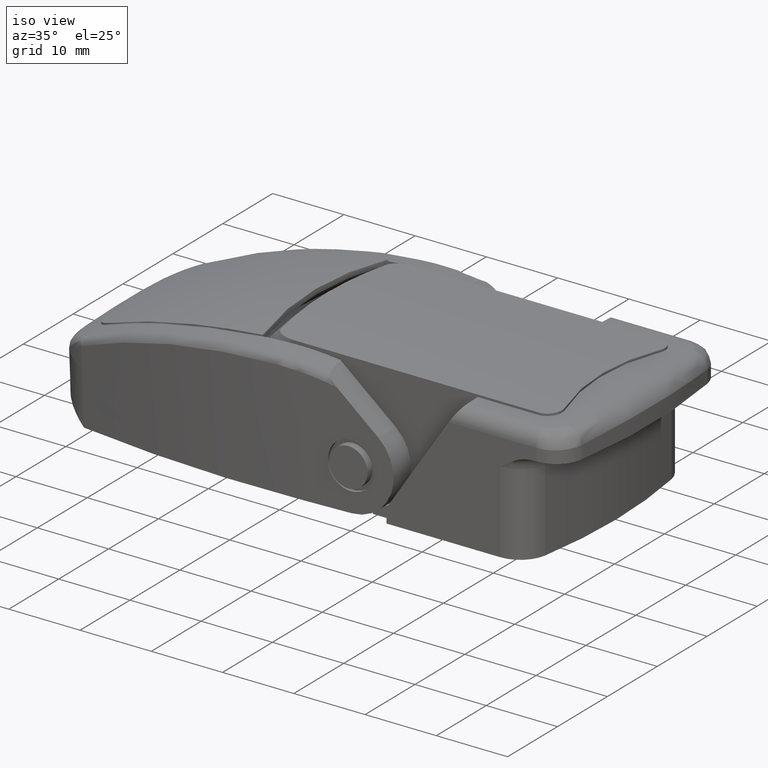
[diagram: clean part render]
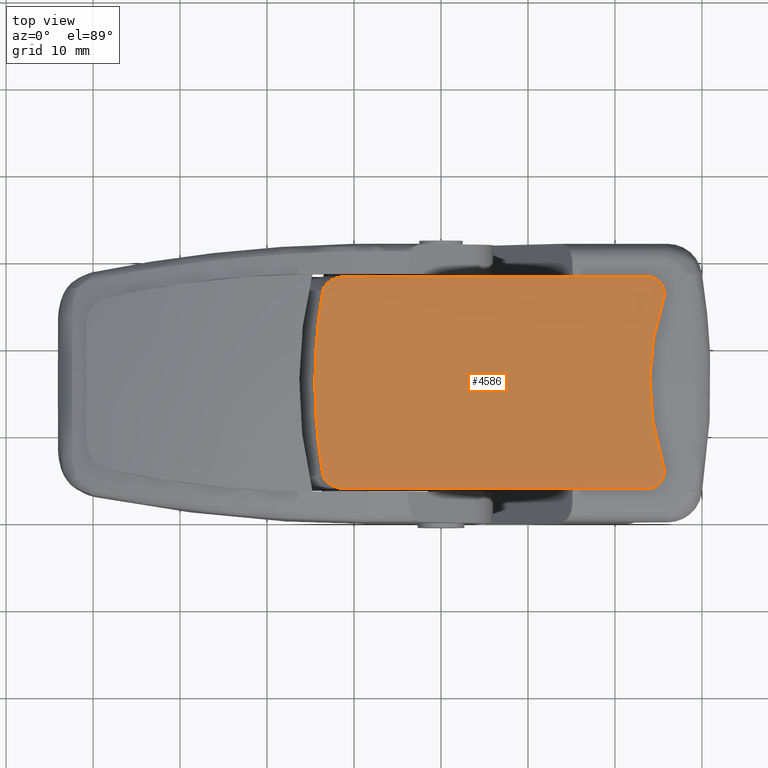
[diagram: tour spotlight — one face highlighted and labeled with its STEP entity id]
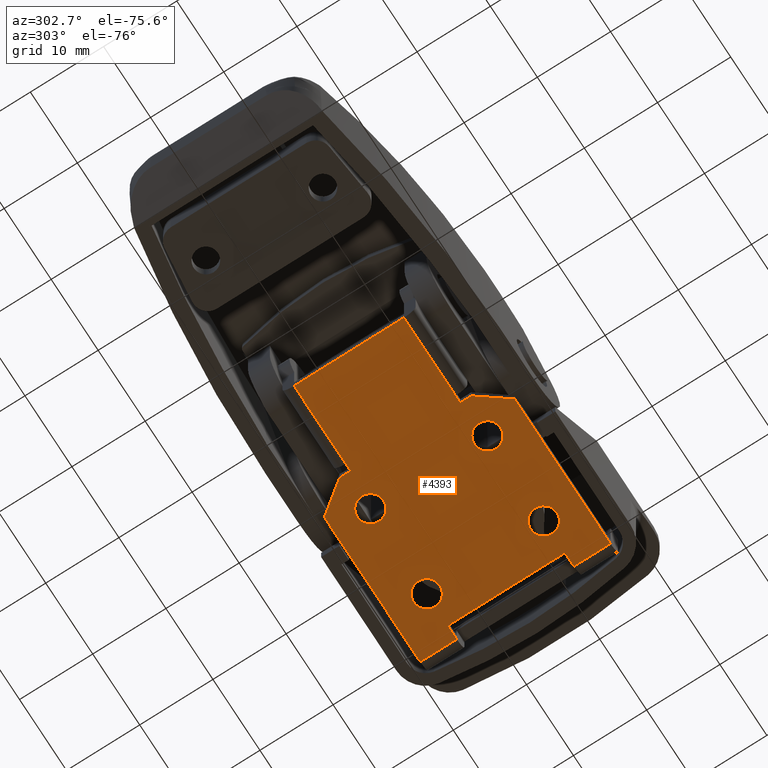
[diagram: tour spotlight — one face highlighted and labeled with its STEP entity id]
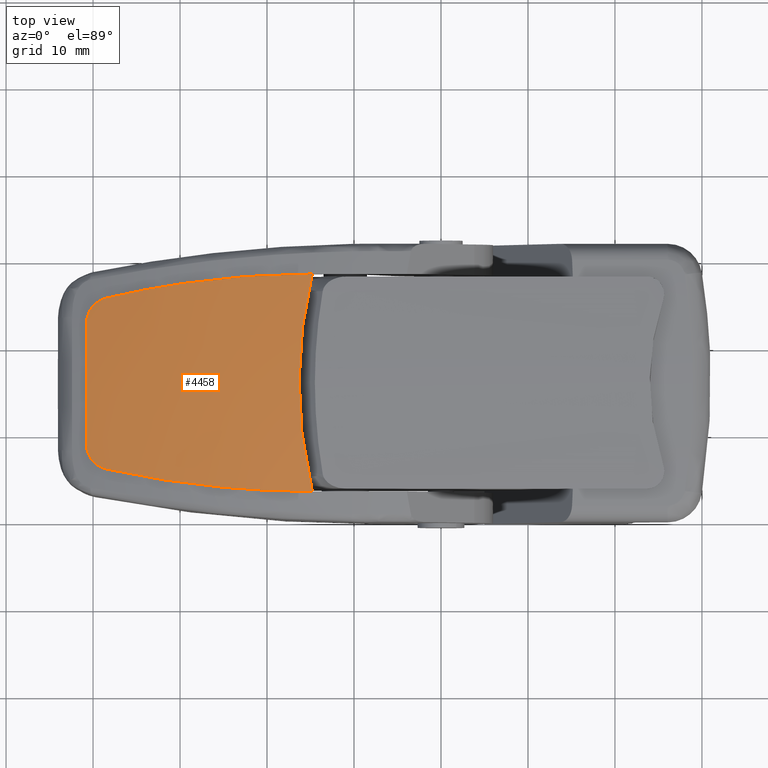
[diagram: tour spotlight — one face highlighted and labeled with its STEP entity id]
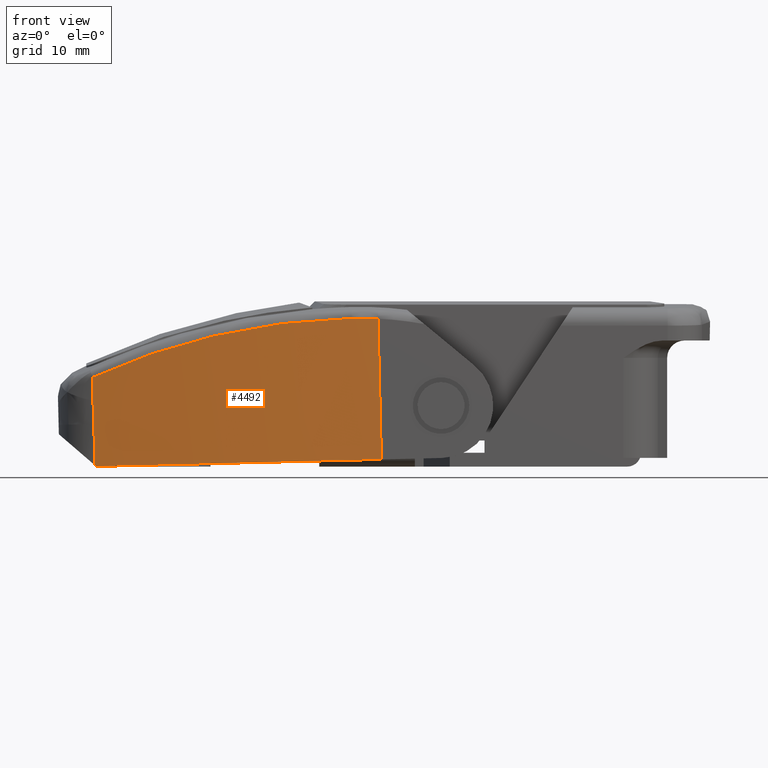
[diagram: tour spotlight — one face highlighted and labeled with its STEP entity id]
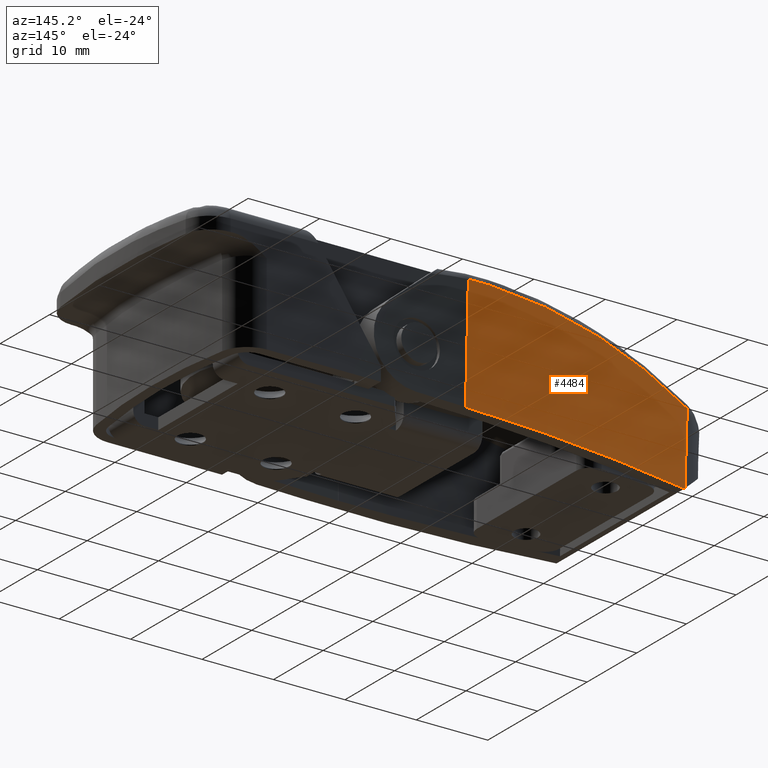
[diagram: tour spotlight — one face highlighted and labeled with its STEP entity id]
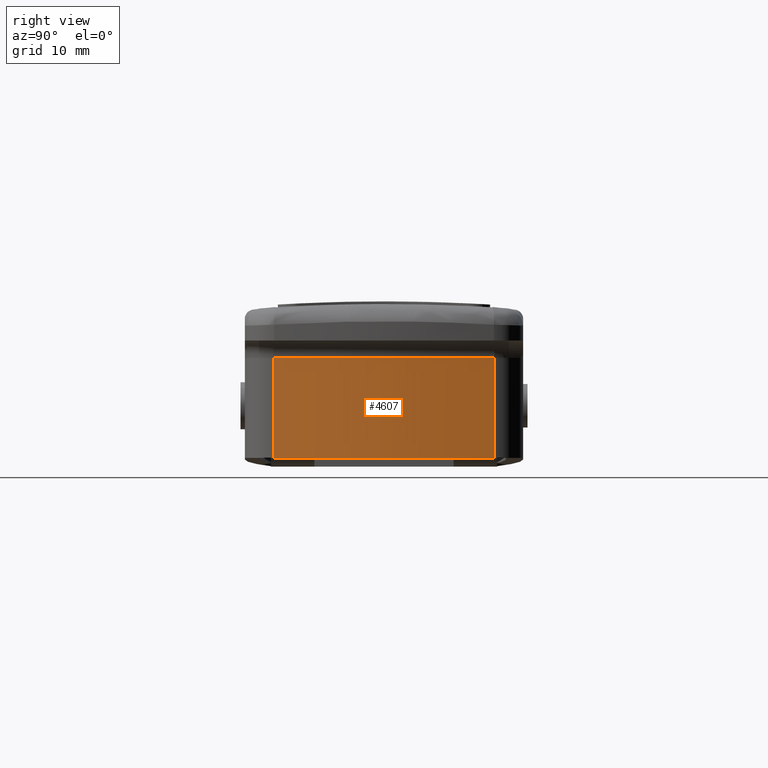
[diagram: tour spotlight — one face highlighted and labeled with its STEP entity id]
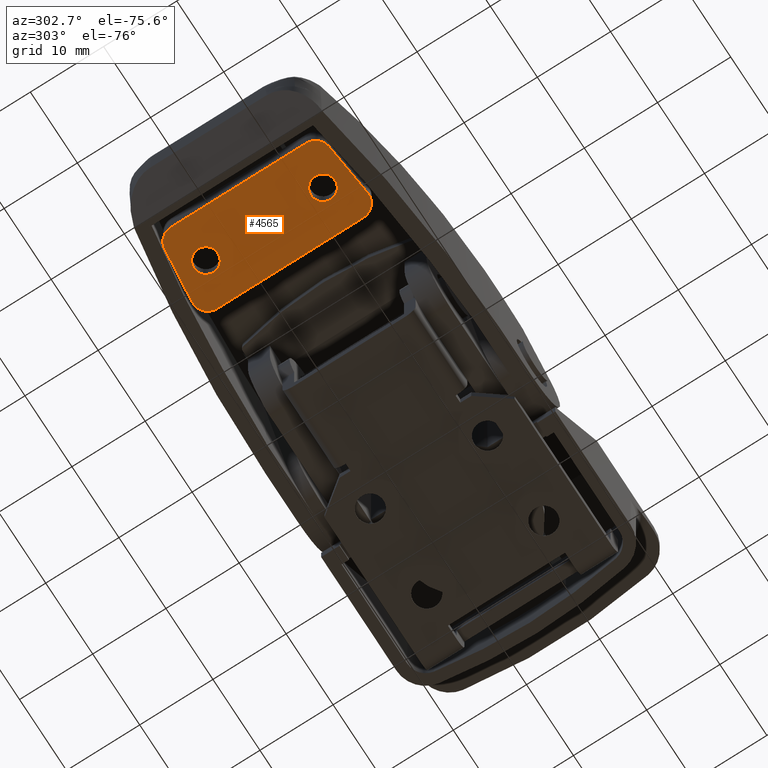
[diagram: tour spotlight — one face highlighted and labeled with its STEP entity id]
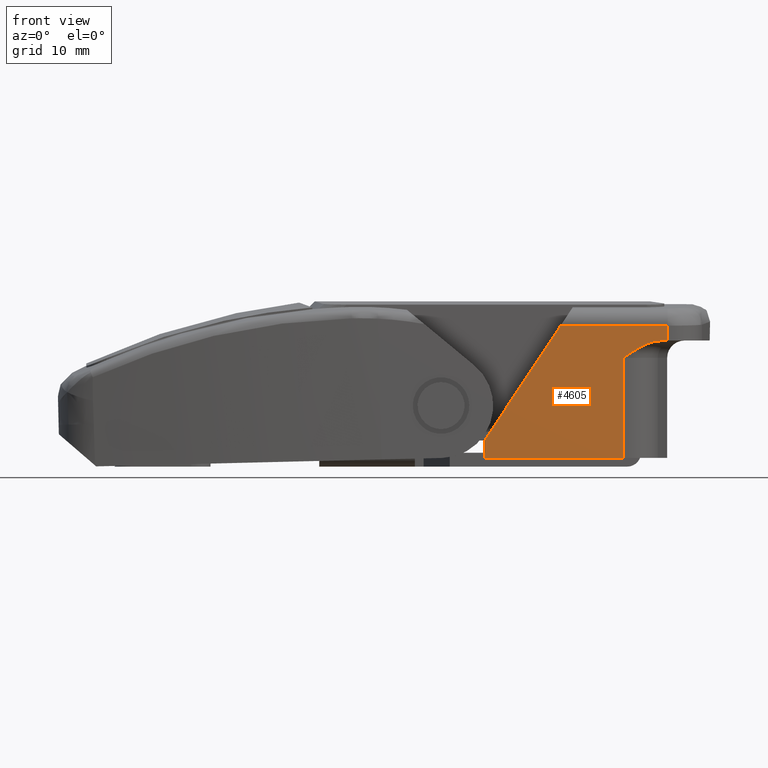
[diagram: tour spotlight — one face highlighted and labeled with its STEP entity id]
A machine part: a face-by-face anatomy tour. The part has 269 B-rep faces; the first image is the clean iso view, then the 8 largest visible faces are spotlighted one at a time (largest first), each with its STEP entity span.

Face 1 — top view, entity #4586. In plain terms, the highlighted cylindrical surface (partial cylindrical patch) has radius 200.3 mm, axis along (1, -0, -0).
Definition (entity closure, byte-faithful):
#131=B_SPLINE_CURVE_WITH_KNOTS('',3,(#8829,#8830,#8831,#8832,#8833,#8834,
#8835,#8836,#8837,#8838,#8839,#8840),.UNSPECIFIED.,.F.,.F.,(4,2,2,2,2,4),
(-0.265250264960084,-0.237286936239802,-0.208401777655633,-0.150911160019762,
-0.0887640602766594,0.),.UNSPECIFIED.);
#135=B_SPLINE_CURVE_WITH_KNOTS('',3,(#8927,#8928,#8929,#8930,#8931,#8932,
#8933,#8934,#8935,#8936,#8937,#8938),.UNSPECIFIED.,.F.,.F.,(4,2,2,2,2,4),
(-0.308891274776866,-0.232377226496516,-0.154724802335189,-0.0769724004231038,
-0.0379144023898266,-1.41765379157999E-7),.UNSPECIFIED.);
#139=B_SPLINE_CURVE_WITH_KNOTS('',3,(#8991,#8992,#8993,#8994,#8995,#8996,
#8997,#8998,#8999,#9000),.UNSPECIFIED.,.F.,.F.,(4,2,2,2,4),(22.3000721552577,
22.4066340783082,23.3214016062008,24.2361691340934,24.3427310571439),
 .UNSPECIFIED.);
#140=B_SPLINE_CURVE_WITH_KNOTS('',3,(#9023,#9024,#9025,#9026,#9027,#9028,
#9029,#9030,#9031,#9032,#9033,#9034),.UNSPECIFIED.,.F.,.F.,(4,2,2,2,2,4),
(1.3322676295502E-15,0.0753648927288268,0.150729785457652,0.226154973578045,
0.301580161698437,0.364121683397203),.UNSPECIFIED.);
#141=B_SPLINE_CURVE_WITH_KNOTS('',3,(#9036,#9037,#9038,#9039,#9040,#9041,
#9042,#9043,#9044,#9045),.UNSPECIFIED.,.F.,.F.,(4,2,2,2,4),(-14.5205019758331,
-14.1486380765508,-13.582697261488,-13.0167564464253,-12.644892547143),
 .UNSPECIFIED.);
#142=B_SPLINE_CURVE_WITH_KNOTS('',3,(#9047,#9048,#9049,#9050,#9051,#9052,
#9053,#9054,#9055,#9056,#9057,#9058),.UNSPECIFIED.,.F.,.F.,(4,2,2,2,2,4),
(0.238972948336798,0.301514470035564,0.376939658155956,0.452364846276348,
0.527729739005174,0.603094631734),.UNSPECIFIED.);
#598=FACE_OUTER_BOUND('',#917,.T.);
#917=EDGE_LOOP('',(#3909,#3910,#3911,#3912,#3913,#3914,#3915,#3916));
#1239=LINE('',#9016,#1591);
#1240=LINE('',#9059,#1592);
#1591=VECTOR('',#6043,34.5388799554579);
#1592=VECTOR('',#6050,34.5388799554579);
#2205=VERTEX_POINT('',#8827);
#2206=VERTEX_POINT('',#8828);
#2220=VERTEX_POINT('',#8925);
#2221=VERTEX_POINT('',#8926);
#2231=VERTEX_POINT('',#9014);
#2234=VERTEX_POINT('',#9022);
#2235=VERTEX_POINT('',#9035);
#2236=VERTEX_POINT('',#9046);
#2780=EDGE_CURVE('',#2205,#2206,#131,.T.);
#2797=EDGE_CURVE('',#2220,#2221,#135,.T.);
#2809=EDGE_CURVE('',#2205,#2221,#139,.F.);
#2817=EDGE_CURVE('',#2220,#2231,#1239,.T.);
#2820=EDGE_CURVE('',#2231,#2234,#140,.T.);
#2821=EDGE_CURVE('',#2234,#2235,#141,.T.);
#2822=EDGE_CURVE('',#2235,#2236,#142,.T.);
#2823=EDGE_CURVE('',#2236,#2206,#1240,.T.);
#3909=ORIENTED_EDGE('',*,*,#2780,.F.);
#3910=ORIENTED_EDGE('',*,*,#2809,.T.);
#3911=ORIENTED_EDGE('',*,*,#2797,.F.);
#3912=ORIENTED_EDGE('',*,*,#2817,.T.);
#3913=ORIENTED_EDGE('',*,*,#2820,.T.);
#3914=ORIENTED_EDGE('',*,*,#2821,.T.);
#3915=ORIENTED_EDGE('',*,*,#2822,.T.);
#3916=ORIENTED_EDGE('',*,*,#2823,.T.);
#4364=CYLINDRICAL_SURFACE('',#5008,200.3);
#4586=ADVANCED_FACE('',(#598),#4364,.T.);
#5008=AXIS2_PLACEMENT_3D('',#9021,#6048,#6049);
#6043=DIRECTION('',(1.,-8.7938457396052E-16,0.));
#6048=DIRECTION('center_axis',(1.,-8.7938457396052E-16,0.));
#6049=DIRECTION('ref_axis',(-8.765660264091E-16,-0.996794863550169,-0.08));
#6050=DIRECTION('',(-1.,8.7938457396052E-16,0.));
#8827=CARTESIAN_POINT('',(-24.6017738256782,17.7239651058569,-10.5120593632689));
#8828=CARTESIAN_POINT('',(-21.8697223440234,17.6281120803175,-12.2));
#8829=CARTESIAN_POINT('Ctrl Pts',(-24.6017756534873,17.7239650675936,-10.5120596763001));
#8830=CARTESIAN_POINT('Ctrl Pts',(-24.5787520848396,17.7169429317177,-10.6456772074404));
#8831=CARTESIAN_POINT('Ctrl Pts',(-24.5356708879663,17.7100348083213,-10.7745499290627));
#8832=CARTESIAN_POINT('Ctrl Pts',(-24.4154023701767,17.6965120529536,-11.0227545915791));
#8833=CARTESIAN_POINT('Ctrl Pts',(-24.3377016534488,17.6899765564796,-11.1405116595261));
#8834=CARTESIAN_POINT('Ctrl Pts',(-24.070320725719,17.6717939291282,-11.4637721635073));
#8835=CARTESIAN_POINT('Ctrl Pts',(-23.8351071257913,17.6607291275254,-11.6541764082671));
#8836=CARTESIAN_POINT('Ctrl Pts',(-23.2499255991344,17.6421193371832,-11.9693699139118));
#8837=CARTESIAN_POINT('Ctrl Pts',(-22.9544981089236,17.636957812684,-12.0542552078865));
#8838=CARTESIAN_POINT('Ctrl Pts',(-22.4650340109937,17.6301271693276,-12.1671143997729));
#8839=CARTESIAN_POINT('Ctrl Pts',(-22.165602653513,17.6281120803175,-12.2));
#8840=CARTESIAN_POINT('Ctrl Pts',(-21.8697223440234,17.6281120803175,-12.2));
#8925=CARTESIAN_POINT('',(-21.8697223440234,17.6281120803175,12.2));
#8926=CARTESIAN_POINT('',(-24.6017738256782,17.7239651058569,10.5120593632688));
#8927=CARTESIAN_POINT('Ctrl Pts',(-21.8697223440234,17.6281120803175,12.2));
#8928=CARTESIAN_POINT('Ctrl Pts',(-22.1877307371977,17.6281120803175,12.2));
#8929=CARTESIAN_POINT('Ctrl Pts',(-22.5101914980556,17.6304414347204,12.1620117138251));
#8930=CARTESIAN_POINT('Ctrl Pts',(-23.1306539510858,17.639811756577,12.006989383508));
#8931=CARTESIAN_POINT('Ctrl Pts',(-23.4115546544282,17.6465655869786,11.8947005629484));
#8932=CARTESIAN_POINT('Ctrl Pts',(-23.9154783247827,17.6643567204295,11.59176829204));
#8933=CARTESIAN_POINT('Ctrl Pts',(-24.1256600659269,17.6749819929645,11.4078299732687));
#8934=CARTESIAN_POINT('Ctrl Pts',(-24.3646130833223,17.6922043851949,11.1003957381508));
#8935=CARTESIAN_POINT('Ctrl Pts',(-24.433854009362,17.6983421483156,10.9894092500456));
#8936=CARTESIAN_POINT('Ctrl Pts',(-24.5415209494597,17.7109879246098,10.7567597595833));
#8937=CARTESIAN_POINT('Ctrl Pts',(-24.580343999147,17.7174284619472,10.6364385154375));
#8938=CARTESIAN_POINT('Ctrl Pts',(-24.6017756534873,17.7239650675936,10.5120596763));
#8991=CARTESIAN_POINT('Ctrl Pts',(-24.6017720683449,17.7239650999736,10.512059060173));
#8992=CARTESIAN_POINT('Ctrl Pts',(-24.6656718312195,17.7434494132058,10.1413106114014));
#8993=CARTESIAN_POINT('Ctrl Pts',(-24.7260736210266,17.7618997376206,9.77056324978309));
#8994=CARTESIAN_POINT('Ctrl Pts',(-25.2715927167256,17.9287669325661,6.21878307632123));
#8995=CARTESIAN_POINT('Ctrl Pts',(-25.4999999999998,18.,3.04922509297546));
#8996=CARTESIAN_POINT('Ctrl Pts',(-25.4999999999998,18.,-3.04922509297542));
#8997=CARTESIAN_POINT('Ctrl Pts',(-25.2715927167256,17.9287669325661,-6.21878307632119));
#8998=CARTESIAN_POINT('Ctrl Pts',(-24.7260736210266,17.7618997376206,-9.77056324978307));
#8999=CARTESIAN_POINT('Ctrl Pts',(-24.6656718312195,17.7434494132058,-10.1413106114013));
#9000=CARTESIAN_POINT('Ctrl Pts',(-24.6017720683449,17.7239650999736,-10.512059060173));
#9014=CARTESIAN_POINT('',(12.6691576114345,17.6281120803175,12.2));
#9016=CARTESIAN_POINT('',(-30.5,17.6281120803175,12.2));
#9021=CARTESIAN_POINT('Origin',(-30.5000000000002,-182.3,0.));
#9022=CARTESIAN_POINT('',(14.5648352607199,17.7716086648727,9.5625));
#9023=CARTESIAN_POINT('Ctrl Pts',(12.6691576114345,17.6281120803175,12.2));
#9024=CARTESIAN_POINT('Ctrl Pts',(12.9203739205306,17.6281120803175,12.2));
#9025=CARTESIAN_POINT('Ctrl Pts',(13.1882935430925,17.6311967830373,12.1497740783027));
#9026=CARTESIAN_POINT('Ctrl Pts',(13.6810476649327,17.6434983909755,11.94562298193));
#9027=CARTESIAN_POINT('Ctrl Pts',(13.9058840431132,17.6526879107092,11.7917006930675));
#9028=CARTESIAN_POINT('Ctrl Pts',(14.2610003023959,17.6733137071973,11.4365844337848));
#9029=CARTESIAN_POINT('Ctrl Pts',(14.4149092572825,17.686123232956,11.2116634089714));
#9030=CARTESIAN_POINT('Ctrl Pts',(14.6189874764486,17.7131388037532,10.7189172967003));
#9031=CARTESIAN_POINT('Ctrl Pts',(14.6691576114345,17.7273178984038,10.4510910926314));
#9032=CARTESIAN_POINT('Ctrl Pts',(14.6691576114345,17.7507371102553,9.99179874244251));
#9033=CARTESIAN_POINT('Ctrl Pts',(14.6352396730824,17.7616024422145,9.77185540537526));
#9034=CARTESIAN_POINT('Ctrl Pts',(14.5648352607199,17.7716086648728,9.56250000000002));
#9035=CARTESIAN_POINT('',(14.5648352607199,17.7716086648727,-9.5625));
#9036=CARTESIAN_POINT('Ctrl Pts',(14.5648352607199,17.7716086648728,9.56250000000001));
#9037=CARTESIAN_POINT('Ctrl Pts',(14.1463218520907,17.831089856629,8.31800350640849));
#9038=CARTESIAN_POINT('Ctrl Pts',(13.8109918782444,17.8799867684469,7.04888854423269));
#9039=CARTESIAN_POINT('Ctrl Pts',(13.1808062868162,17.9726461898593,3.83647263675324));
#9040=CARTESIAN_POINT('Ctrl Pts',(13.,18.,1.88646938354251));
#9041=CARTESIAN_POINT('Ctrl Pts',(13.,18.,-1.88646938354248));
#9042=CARTESIAN_POINT('Ctrl Pts',(13.1808062868162,17.9726461898593,-3.83647263675322));
#9043=CARTESIAN_POINT('Ctrl Pts',(13.8109918782444,17.8799867684469,-7.04888854423267));
#9044=CARTESIAN_POINT('Ctrl Pts',(14.1463218520907,17.831089856629,-8.31800350640849));
#9045=CARTESIAN_POINT('Ctrl Pts',(14.5648352607199,17.7716086648728,-9.56250000000002));
#9046=CARTESIAN_POINT('',(12.6691576114345,17.6281120803175,-12.2));
#9047=CARTESIAN_POINT('Ctrl Pts',(14.5648352607199,17.7716086648728,-9.56250000000002));
#9048=CARTESIAN_POINT('Ctrl Pts',(14.6352396730824,17.7616024422145,-9.77185540537526));
#9049=CARTESIAN_POINT('Ctrl Pts',(14.6691576114345,17.7507371102553,-9.99179874244251));
#9050=CARTESIAN_POINT('Ctrl Pts',(14.6691576114345,17.7273178984038,-10.4510910926314));
#9051=CARTESIAN_POINT('Ctrl Pts',(14.6189874764486,17.7131388037532,-10.7189172967003));
#9052=CARTESIAN_POINT('Ctrl Pts',(14.4149092572825,17.686123232956,-11.2116634089714));
#9053=CARTESIAN_POINT('Ctrl Pts',(14.2610003023959,17.6733137071973,-11.4365844337848));
#9054=CARTESIAN_POINT('Ctrl Pts',(13.9058840431132,17.6526879107092,-11.7917006930675));
#9055=CARTESIAN_POINT('Ctrl Pts',(13.6810476649327,17.6434983909755,-11.94562298193));
#9056=CARTESIAN_POINT('Ctrl Pts',(13.1882935430925,17.6311967830373,-12.1497740783027));
#9057=CARTESIAN_POINT('Ctrl Pts',(12.9203739205306,17.6281120803175,-12.2));
#9058=CARTESIAN_POINT('Ctrl Pts',(12.6691576114345,17.6281120803175,-12.2));
#9059=CARTESIAN_POINT('',(-30.5,17.6281120803175,-12.2));

Face 2 — auxiliary view, entity #4393. In plain terms, the highlighted planar face has unit normal (0, 0, 1).
Definition (entity closure, byte-faithful):
#217=FACE_BOUND('',#675,.T.);
#218=FACE_BOUND('',#676,.T.);
#219=FACE_BOUND('',#677,.T.);
#220=FACE_BOUND('',#678,.T.);
#282=PLANE('',#4671);
#405=FACE_OUTER_BOUND('',#674,.T.);
#674=EDGE_LOOP('',(#3005,#3006,#3007,#3008,#3009,#3010,#3011,#3012,#3013,
#3014,#3015,#3016,#3017,#3018,#3019,#3020));
#675=EDGE_LOOP('',(#3021));
#676=EDGE_LOOP('',(#3022));
#677=EDGE_LOOP('',(#3023));
#678=EDGE_LOOP('',(#3024));
#1006=LINE('',#6416,#1358);
#1007=LINE('',#6419,#1359);
#1013=LINE('',#6431,#1365);
#1014=LINE('',#6433,#1366);
#1015=LINE('',#6435,#1367);
#1016=LINE('',#6437,#1368);
#1017=LINE('',#6439,#1369);
#1018=LINE('',#6441,#1370);
#1019=LINE('',#6443,#1371);
#1020=LINE('',#6445,#1372);
#1021=LINE('',#6447,#1373);
#1022=LINE('',#6449,#1374);
#1023=LINE('',#6451,#1375);
#1024=LINE('',#6453,#1376);
#1025=LINE('',#6455,#1377);
#1026=LINE('',#6456,#1378);
#1358=VECTOR('',#5138,5.);
#1359=VECTOR('',#5141,20.4);
#1365=VECTOR('',#5149,1.9);
#1366=VECTOR('',#5150,16.);
#1367=VECTOR('',#5151,1.9);
#1368=VECTOR('',#5152,5.);
#1369=VECTOR('',#5153,20.4);
#1370=VECTOR('',#5154,5.);
#1371=VECTOR('',#5155,1.50000000000001);
#1372=VECTOR('',#5156,1.);
#1373=VECTOR('',#5157,11.);
#1374=VECTOR('',#5158,15.);
#1375=VECTOR('',#5159,11.);
#1376=VECTOR('',#5160,1.);
#1377=VECTOR('',#5161,1.5);
#1378=VECTOR('',#5162,5.);
#1711=CIRCLE('',#4672,1.8);
#1712=CIRCLE('',#4673,1.8);
#1713=CIRCLE('',#4674,1.8);
#1714=CIRCLE('',#4675,1.8);
#1911=VERTEX_POINT('',#6409);
#1914=VERTEX_POINT('',#6414);
#1915=VERTEX_POINT('',#6418);
#1920=VERTEX_POINT('',#6430);
#1921=VERTEX_POINT('',#6432);
#1922=VERTEX_POINT('',#6434);
#1923=VERTEX_POINT('',#6436);
#1924=VERTEX_POINT('',#6438);
#1925=VERTEX_POINT('',#6440);
#1926=VERTEX_POINT('',#6442);
#1927=VERTEX_POINT('',#6444);
#1928=VERTEX_POINT('',#6446);
#1929=VERTEX_POINT('',#6448);
#1930=VERTEX_POINT('',#6450);
#1931=VERTEX_POINT('',#6452);
#1932=VERTEX_POINT('',#6454);
#1933=VERTEX_POINT('',#6457);
#1934=VERTEX_POINT('',#6459);
#1935=VERTEX_POINT('',#6461);
#1936=VERTEX_POINT('',#6463);
#2344=EDGE_CURVE('',#1914,#1911,#1006,.T.);
#2345=EDGE_CURVE('',#1915,#1911,#1007,.T.);
#2351=EDGE_CURVE('',#1914,#1920,#1013,.T.);
#2352=EDGE_CURVE('',#1920,#1921,#1014,.T.);
#2353=EDGE_CURVE('',#1921,#1922,#1015,.T.);
#2354=EDGE_CURVE('',#1923,#1922,#1016,.T.);
#2355=EDGE_CURVE('',#1923,#1924,#1017,.T.);
#2356=EDGE_CURVE('',#1924,#1925,#1018,.T.);
#2357=EDGE_CURVE('',#1925,#1926,#1019,.T.);
#2358=EDGE_CURVE('',#1926,#1927,#1020,.T.);
#2359=EDGE_CURVE('',#1928,#1927,#1021,.T.);
#2360=EDGE_CURVE('',#1928,#1929,#1022,.T.);
#2361=EDGE_CURVE('',#1930,#1929,#1023,.T.);
#2362=EDGE_CURVE('',#1930,#1931,#1024,.T.);
#2363=EDGE_CURVE('',#1931,#1932,#1025,.T.);
#2364=EDGE_CURVE('',#1932,#1915,#1026,.T.);
#2365=EDGE_CURVE('',#1933,#1933,#1711,.T.);
#2366=EDGE_CURVE('',#1934,#1934,#1712,.T.);
#2367=EDGE_CURVE('',#1935,#1935,#1713,.T.);
#2368=EDGE_CURVE('',#1936,#1936,#1714,.T.);
#3005=ORIENTED_EDGE('',*,*,#2344,.F.);
#3006=ORIENTED_EDGE('',*,*,#2351,.T.);
#3007=ORIENTED_EDGE('',*,*,#2352,.T.);
#3008=ORIENTED_EDGE('',*,*,#2353,.T.);
#3009=ORIENTED_EDGE('',*,*,#2354,.F.);
#3010=ORIENTED_EDGE('',*,*,#2355,.T.);
#3011=ORIENTED_EDGE('',*,*,#2356,.T.);
#3012=ORIENTED_EDGE('',*,*,#2357,.T.);
#3013=ORIENTED_EDGE('',*,*,#2358,.T.);
#3014=ORIENTED_EDGE('',*,*,#2359,.F.);
#3015=ORIENTED_EDGE('',*,*,#2360,.T.);
#3016=ORIENTED_EDGE('',*,*,#2361,.F.);
#3017=ORIENTED_EDGE('',*,*,#2362,.T.);
#3018=ORIENTED_EDGE('',*,*,#2363,.T.);
#3019=ORIENTED_EDGE('',*,*,#2364,.T.);
#3020=ORIENTED_EDGE('',*,*,#2345,.T.);
#3021=ORIENTED_EDGE('',*,*,#2365,.T.);
#3022=ORIENTED_EDGE('',*,*,#2366,.T.);
#3023=ORIENTED_EDGE('',*,*,#2367,.T.);
#3024=ORIENTED_EDGE('',*,*,#2368,.T.);
#4393=ADVANCED_FACE('',(#405,#217,#218,#219,#220),#282,.F.);
#4671=AXIS2_PLACEMENT_3D('',#6429,#5147,#5148);
#4672=AXIS2_PLACEMENT_3D('',#6458,#5163,#5164);
#4673=AXIS2_PLACEMENT_3D('',#6460,#5165,#5166);
#4674=AXIS2_PLACEMENT_3D('',#6462,#5167,#5168);
#4675=AXIS2_PLACEMENT_3D('',#6464,#5169,#5170);
#5138=DIRECTION('',(0.,1.,0.));
#5141=DIRECTION('',(1.,2.01858731750029E-16,0.));
#5147=DIRECTION('center_axis',(0.,0.,1.));
#5148=DIRECTION('ref_axis',(1.,0.,0.));
#5149=DIRECTION('',(-1.,0.,0.));
#5150=DIRECTION('',(-7.81870066975116E-31,-1.,0.));
#5151=DIRECTION('',(1.,0.,0.));
#5152=DIRECTION('',(0.,1.,0.));
#5153=DIRECTION('',(-1.,-2.01858731750029E-16,0.));
#5154=DIRECTION('',(-0.599999999999999,0.800000000000001,0.));
#5155=DIRECTION('',(0.,1.,0.));
#5156=DIRECTION('',(-1.,-3.70074341541719E-16,0.));
#5157=DIRECTION('',(1.,4.08472241294332E-16,0.));
#5158=DIRECTION('',(0.,1.,0.));
#5159=DIRECTION('',(-1.,4.08472241294332E-16,0.));
#5160=DIRECTION('',(1.,1.85037170770859E-16,0.));
#5161=DIRECTION('',(0.,1.,0.));
#5162=DIRECTION('',(0.6,0.8,0.));
#5163=DIRECTION('center_axis',(0.,0.,1.));
#5164=DIRECTION('ref_axis',(1.,0.,0.));
#5165=DIRECTION('center_axis',(0.,0.,1.));
#5166=DIRECTION('ref_axis',(1.,0.,0.));
#5167=DIRECTION('center_axis',(0.,0.,1.));
#5168=DIRECTION('ref_axis',(1.,0.,0.));
#5169=DIRECTION('center_axis',(0.,0.,1.));
#5170=DIRECTION('ref_axis',(1.,0.,0.));
#6409=CARTESIAN_POINT('',(32.4,13.,0.));
#6414=CARTESIAN_POINT('',(32.4,8.,0.));
#6416=CARTESIAN_POINT('',(32.4,6.5,0.));
#6418=CARTESIAN_POINT('',(12.,13.,0.));
#6419=CARTESIAN_POINT('',(12.,13.,0.));
#6429=CARTESIAN_POINT('Origin',(16.844262295082,3.05311331771918E-15,0.));
#6430=CARTESIAN_POINT('',(30.5,8.,2.22044604925031E-15));
#6431=CARTESIAN_POINT('',(25.422131147541,8.,0.));
#6432=CARTESIAN_POINT('',(30.5,-8.,1.17466031923927E-33));
#6433=CARTESIAN_POINT('',(30.5,2.56739074444567E-15,0.));
#6434=CARTESIAN_POINT('',(32.4,-8.,0.));
#6435=CARTESIAN_POINT('',(25.422131147541,-8.,0.));
#6436=CARTESIAN_POINT('',(32.4,-13.,0.));
#6437=CARTESIAN_POINT('',(32.4,6.5,0.));
#6438=CARTESIAN_POINT('',(12.,-13.,0.));
#6439=CARTESIAN_POINT('',(34.,-13.,0.));
#6440=CARTESIAN_POINT('',(9.,-9.,0.));
#6441=CARTESIAN_POINT('',(12.,-13.,0.));
#6442=CARTESIAN_POINT('',(9.,-7.49999999999999,0.));
#6443=CARTESIAN_POINT('',(9.,-9.,0.));
#6444=CARTESIAN_POINT('',(8.,-7.49999999999999,0.));
#6445=CARTESIAN_POINT('',(9.,-7.49999999999999,0.));
#6446=CARTESIAN_POINT('',(-3.,-7.5,0.));
#6447=CARTESIAN_POINT('',(9.25599032689823,-7.49999999999999,0.));
#6448=CARTESIAN_POINT('',(-3.,7.5,0.));
#6449=CARTESIAN_POINT('',(-3.,-7.5,0.));
#6450=CARTESIAN_POINT('',(8.,7.49999999999999,0.));
#6451=CARTESIAN_POINT('',(9.25599032689823,7.49999999999999,0.));
#6452=CARTESIAN_POINT('',(9.,7.5,0.));
#6453=CARTESIAN_POINT('',(-3.,7.5,0.));
#6454=CARTESIAN_POINT('',(9.,9.,0.));
#6455=CARTESIAN_POINT('',(9.,7.5,0.));
#6456=CARTESIAN_POINT('',(9.,9.,0.));
#6457=CARTESIAN_POINT('',(12.2,8.,0.));
#6458=CARTESIAN_POINT('Origin',(14.,8.,0.));
#6459=CARTESIAN_POINT('',(24.2,8.,0.));
#6460=CARTESIAN_POINT('Origin',(26.,8.,0.));
#6461=CARTESIAN_POINT('',(24.2,-8.,0.));
#6462=CARTESIAN_POINT('Origin',(26.,-8.,0.));
#6463=CARTESIAN_POINT('',(12.2,-8.,0.));
#6464=CARTESIAN_POINT('Origin',(14.,-8.,0.));

Face 3 — top view, entity #4458. In plain terms, the highlighted face is a freeform B-spline surface patch.
Definition (entity closure, byte-faithful):
#94=B_SPLINE_CURVE_WITH_KNOTS('',3,(#7422,#7423,#7424,#7425,#7426,#7427),
 .UNSPECIFIED.,.F.,.F.,(4,2,4),(2.21079713908459E-9,1.26170555347768,2.52037662355651),
 .UNSPECIFIED.);
#95=B_SPLINE_CURVE_WITH_KNOTS('',3,(#7445,#7446,#7447,#7448,#7449,#7450),
 .UNSPECIFIED.,.F.,.F.,(4,2,4),(-2.46839815182303,-1.23410082976373,0.),
 .UNSPECIFIED.);
#96=B_SPLINE_CURVE_WITH_KNOTS('',3,(#7452,#7453,#7454,#7455,#7456,#7457),
 .UNSPECIFIED.,.F.,.F.,(4,2,4),(-2.46835090400682,-1.23429150426652,-3.5618827087274E-5),
 .UNSPECIFIED.);
#97=B_SPLINE_CURVE_WITH_KNOTS('',3,(#7459,#7460,#7461,#7462,#7463,#7464,
#7465,#7466,#7467,#7468),.UNSPECIFIED.,.F.,.F.,(4,2,2,2,4),(-0.416134664779395,
-0.315556158141859,-0.208305340873501,-0.0985261132979148,-5.23343185083711E-5),
 .UNSPECIFIED.);
#98=B_SPLINE_CURVE_WITH_KNOTS('',3,(#7470,#7471,#7472,#7473,#7474,#7475),
 .UNSPECIFIED.,.F.,.F.,(4,2,4),(-1.38133062304208,-0.690688235260845,-4.58474768467912E-5),
 .UNSPECIFIED.);
#99=B_SPLINE_CURVE_WITH_KNOTS('',3,(#7476,#7477,#7478,#7479,#7480,#7481,
#7482,#7483,#7484,#7485),.UNSPECIFIED.,.F.,.F.,(4,2,2,2,4),(-0.417039352808496,
-0.31847571307348,-0.208633320242389,-0.10099767412794,-6.89451069775392E-5),
 .UNSPECIFIED.);
#165=B_SPLINE_SURFACE_WITH_KNOTS('',3,3,((#7428,#7429,#7430,#7431),(#7432,
#7433,#7434,#7435),(#7436,#7437,#7438,#7439),(#7440,#7441,#7442,#7443)),
 .UNSPECIFIED.,.F.,.F.,.F.,(4,4),(4,4),(-3.10600678106382,-2.85579722020753),
(0.0516844422554465,0.422120281202707),.UNSPECIFIED.);
#470=FACE_OUTER_BOUND('',#771,.T.);
#771=EDGE_LOOP('',(#3278,#3279,#3280,#3281,#3282,#3283));
#2023=VERTEX_POINT('',#7409);
#2026=VERTEX_POINT('',#7420);
#2027=VERTEX_POINT('',#7444);
#2028=VERTEX_POINT('',#7451);
#2029=VERTEX_POINT('',#7458);
#2030=VERTEX_POINT('',#7469);
#2496=EDGE_CURVE('',#2023,#2026,#94,.T.);
#2497=EDGE_CURVE('',#2027,#2023,#95,.T.);
#2498=EDGE_CURVE('',#2026,#2028,#96,.T.);
#2499=EDGE_CURVE('',#2028,#2029,#97,.T.);
#2500=EDGE_CURVE('',#2029,#2030,#98,.T.);
#2501=EDGE_CURVE('',#2030,#2027,#99,.T.);
#3278=ORIENTED_EDGE('',*,*,#2497,.T.);
#3279=ORIENTED_EDGE('',*,*,#2496,.T.);
#3280=ORIENTED_EDGE('',*,*,#2498,.T.);
#3281=ORIENTED_EDGE('',*,*,#2499,.T.);
#3282=ORIENTED_EDGE('',*,*,#2500,.T.);
#3283=ORIENTED_EDGE('',*,*,#2501,.T.);
#4458=ADVANCED_FACE('',(#470),#165,.F.);
#7409=CARTESIAN_POINT('',(-14.5176354926548,11.6666708051842,12.4999985509922));
#7420=CARTESIAN_POINT('',(-14.5176354808066,11.6666708049823,-12.499998555113));
#7422=CARTESIAN_POINT('Ctrl Pts',(-14.5176354895647,11.6666708058494,12.4999985503047));
#7423=CARTESIAN_POINT('Ctrl Pts',(-15.5074241688709,12.059367118481,8.43135064288948));
#7424=CARTESIAN_POINT('Ctrl Pts',(-16.0170360866098,12.2538080974094,4.22340264904547));
#7425=CARTESIAN_POINT('Ctrl Pts',(-16.0150000364952,12.2539702536302,-4.21336267453634));
#7426=CARTESIAN_POINT('Ctrl Pts',(-15.509219467274,12.0600838435718,-8.42393100349858));
#7427=CARTESIAN_POINT('Ctrl Pts',(-14.5176354630731,11.6666708074042,-12.4999985510327));
#7428=CARTESIAN_POINT('Ctrl Pts',(-40.6949847180962,5.0690440822578,12.4999985716923));
#7429=CARTESIAN_POINT('Ctrl Pts',(-32.4765447966791,8.8592182207649,12.4999985716923));
#7430=CARTESIAN_POINT('Ctrl Pts',(-23.5507412178249,11.1088394373235,12.4999985716923));
#7431=CARTESIAN_POINT('Ctrl Pts',(-14.517635499977,11.6666708028208,12.4999985716923));
#7432=CARTESIAN_POINT('Ctrl Pts',(-40.6407086022139,6.11038072815146,4.21021364485167));
#7433=CARTESIAN_POINT('Ctrl Pts',(-32.2935418005977,9.89384587699842,4.21021364485167));
#7434=CARTESIAN_POINT('Ctrl Pts',(-23.2407266539501,12.1127485670241,4.21021364485167));
#7435=CARTESIAN_POINT('Ctrl Pts',(-14.0900544452413,12.6177240865371,4.21021364485167));
#7436=CARTESIAN_POINT('Ctrl Pts',(-40.6407086022148,6.11038072813293,-4.21021364529423));
#7437=CARTESIAN_POINT('Ctrl Pts',(-32.2935418006009,9.89384587698001,-4.21021364529423));
#7438=CARTESIAN_POINT('Ctrl Pts',(-23.2407266539556,12.1127485670062,-4.21021364529423));
#7439=CARTESIAN_POINT('Ctrl Pts',(-14.0900544452489,12.6177240865201,-4.21021364529423));
#7440=CARTESIAN_POINT('Ctrl Pts',(-40.694984718099,5.06904408220278,-12.4999985721303));
#7441=CARTESIAN_POINT('Ctrl Pts',(-32.4765447966887,8.85921822071024,-12.4999985721303));
#7442=CARTESIAN_POINT('Ctrl Pts',(-23.5507412178413,11.1088394372705,-12.4999985721303));
#7443=CARTESIAN_POINT('Ctrl Pts',(-14.5176354999996,11.6666708027706,-12.4999985721303));
#7444=CARTESIAN_POINT('',(-38.3151647843711,6.40298052402142,9.82655937335016));
#7445=CARTESIAN_POINT('Ctrl Pts',(-38.3151647435519,6.40298041540041,9.82655938263205));
#7446=CARTESIAN_POINT('Ctrl Pts',(-34.5717531623852,7.88246840814759,10.6777409549801));
#7447=CARTESIAN_POINT('Ctrl Pts',(-30.6811136570622,9.07043031635067,11.3501836118165));
#7448=CARTESIAN_POINT('Ctrl Pts',(-22.6970962804915,10.8379008501229,12.2620917260358));
#7449=CARTESIAN_POINT('Ctrl Pts',(-18.6234879831018,11.4131927500272,12.4993244189826));
#7450=CARTESIAN_POINT('Ctrl Pts',(-14.5176354989731,11.6666708050538,12.4999985522285));
#7451=CARTESIAN_POINT('',(-38.3151647843711,6.40298052402135,-9.82655937335015));
#7452=CARTESIAN_POINT('Ctrl Pts',(-14.5176354989731,11.6666708050538,-12.4999985522286));
#7453=CARTESIAN_POINT('Ctrl Pts',(-18.6234879831018,11.4131927500273,-12.4993244189826));
#7454=CARTESIAN_POINT('Ctrl Pts',(-22.6970962804914,10.8379008501229,-12.2620917260358));
#7455=CARTESIAN_POINT('Ctrl Pts',(-30.6811136570624,9.07043031635062,-11.3501836118165));
#7456=CARTESIAN_POINT('Ctrl Pts',(-34.5717531623854,7.88246840814748,-10.67774095498));
#7457=CARTESIAN_POINT('Ctrl Pts',(-38.3151647435519,6.40298041540035,-9.82655938263203));
#7458=CARTESIAN_POINT('',(-40.65,5.62045347330792,-6.90122932845997));
#7459=CARTESIAN_POINT('Ctrl Pts',(-38.3151647435519,6.40298041540044,-9.8265593826315));
#7460=CARTESIAN_POINT('Ctrl Pts',(-38.6208620829062,6.2821613312028,-9.75704958739264));
#7461=CARTESIAN_POINT('Ctrl Pts',(-38.9167429217328,6.16749249242049,-9.63937352245954));
#7462=CARTESIAN_POINT('Ctrl Pts',(-39.4831762852465,5.95393285590547,-9.3002974459613));
#7463=CARTESIAN_POINT('Ctrl Pts',(-39.7474682943666,5.85784357119868,-9.07444976957214));
#7464=CARTESIAN_POINT('Ctrl Pts',(-40.1962735035245,5.70472858842801,-8.52744703310607));
#7465=CARTESIAN_POINT('Ctrl Pts',(-40.3742071220194,5.65026862273984,-8.20962063483597));
#7466=CARTESIAN_POINT('Ctrl Pts',(-40.5963835247287,5.59953748842111,-7.55391282524269));
#7467=CARTESIAN_POINT('Ctrl Pts',(-40.6500000011602,5.59844475429262,-7.2287324693998));
#7468=CARTESIAN_POINT('Ctrl Pts',(-40.65,5.62045347260633,-6.90122932841283));
#7469=CARTESIAN_POINT('',(-40.65,5.62045347330801,6.90122932846003));
#7470=CARTESIAN_POINT('Ctrl Pts',(-40.65,5.62045347260633,-6.90122932841282));
#7471=CARTESIAN_POINT('Ctrl Pts',(-40.65,5.77481277477321,-4.60426878774266));
#7472=CARTESIAN_POINT('Ctrl Pts',(-40.65,5.85199366145724,-2.30214067726407));
#7473=CARTESIAN_POINT('Ctrl Pts',(-40.65,5.85199366145788,2.30214067724604));
#7474=CARTESIAN_POINT('Ctrl Pts',(-40.65,5.77481277477389,4.60426878773369));
#7475=CARTESIAN_POINT('Ctrl Pts',(-40.65,5.62045347260641,6.90122932841287));
#7476=CARTESIAN_POINT('Ctrl Pts',(-40.6499999999999,5.62045347260643,6.90122932841291));
#7477=CARTESIAN_POINT('Ctrl Pts',(-40.6500000011587,5.59847163253677,7.22833250474834));
#7478=CARTESIAN_POINT('Ctrl Pts',(-40.5965143524237,5.59953448849661,7.55312317025559));
#7479=CARTESIAN_POINT('Ctrl Pts',(-40.3749050890928,5.65007940576881,8.20800890636404));
#7480=CARTESIAN_POINT('Ctrl Pts',(-40.1974625675375,5.70435570423743,8.52546610988972));
#7481=CARTESIAN_POINT('Ctrl Pts',(-39.7491748665056,5.85722948986696,9.07288667922762));
#7482=CARTESIAN_POINT('Ctrl Pts',(-39.4846337474805,5.95339234396265,9.29925471864565));
#7483=CARTESIAN_POINT('Ctrl Pts',(-38.9175366517716,6.16718484092501,9.63905742172657));
#7484=CARTESIAN_POINT('Ctrl Pts',(-38.621273072654,6.28199889797706,9.75695613609444));
#7485=CARTESIAN_POINT('Ctrl Pts',(-38.3151647435519,6.4029804154005,9.82655938263151));

Face 4 — front view, entity #4492. In plain terms, the highlighted cylindrical surface (partial cylindrical patch) has radius 173.125 mm, axis along (-0.0244, -0, 0.9997).
Definition (entity closure, byte-faithful):
#64=ELLIPSE('',#4836,233.468168190848,173.125);
#77=B_SPLINE_CURVE_WITH_KNOTS('',3,(#6884,#6885,#6886,#6887,#6888,#6889,
#6890,#6891,#6892,#6893,#6894,#6895,#6896),.UNSPECIFIED.,.F.,.F.,(4,3,3,
3,4),(0.5,0.625000000000005,0.750000000000009,0.875000000000014,1.),
 .UNSPECIFIED.);
#79=B_SPLINE_CURVE_WITH_KNOTS('',3,(#6957,#6958,#6959,#6960,#6961,#6962,
#6963,#6964,#6965,#6966,#6967,#6968,#6969),.UNSPECIFIED.,.F.,.F.,(4,3,3,
3,4),(0.,0.125,0.250000000000001,0.375000000000001,0.5),.UNSPECIFIED.);
#117=B_SPLINE_CURVE_WITH_KNOTS('',3,(#7998,#7999,#8000,#8001,#8002,#8003,
#8004),.UNSPECIFIED.,.F.,.F.,(4,3,4),(0.423098659914216,1.73846676400223,
3.49229090278624),.UNSPECIFIED.);
#504=FACE_OUTER_BOUND('',#810,.T.);
#810=EDGE_LOOP('',(#3454,#3455,#3456,#3457,#3458,#3459,#3460,#3461));
#1106=LINE('',#7970,#1458);
#1118=LINE('',#8158,#1470);
#1458=VECTOR('',#5526,4.74985582357892);
#1470=VECTOR('',#5588,16.1787068856043);
#1781=CIRCLE('',#4817,41.5905508299096);
#1792=CIRCLE('',#4838,173.125);
#2005=VERTEX_POINT('',#6875);
#2006=VERTEX_POINT('',#6883);
#2008=VERTEX_POINT('',#6955);
#2074=VERTEX_POINT('',#7968);
#2075=VERTEX_POINT('',#7997);
#2077=VERTEX_POINT('',#8032);
#2092=VERTEX_POINT('',#8151);
#2093=VERTEX_POINT('',#8156);
#2469=EDGE_CURVE('',#2005,#2006,#77,.T.);
#2473=EDGE_CURVE('',#2008,#2005,#79,.T.);
#2563=EDGE_CURVE('',#2074,#2008,#1106,.T.);
#2565=EDGE_CURVE('',#2006,#2075,#117,.T.);
#2570=EDGE_CURVE('',#2075,#2077,#1781,.T.);
#2594=EDGE_CURVE('',#2074,#2092,#64,.T.);
#2596=EDGE_CURVE('',#2093,#2092,#1792,.T.);
#2597=EDGE_CURVE('',#2077,#2093,#1118,.T.);
#3454=ORIENTED_EDGE('',*,*,#2563,.F.);
#3455=ORIENTED_EDGE('',*,*,#2594,.T.);
#3456=ORIENTED_EDGE('',*,*,#2596,.F.);
#3457=ORIENTED_EDGE('',*,*,#2597,.F.);
#3458=ORIENTED_EDGE('',*,*,#2570,.F.);
#3459=ORIENTED_EDGE('',*,*,#2565,.F.);
#3460=ORIENTED_EDGE('',*,*,#2469,.F.);
#3461=ORIENTED_EDGE('',*,*,#2473,.F.);
#4327=CYLINDRICAL_SURFACE('',#4837,173.125);
#4492=ADVANCED_FACE('',(#504),#4327,.T.);
#4817=AXIS2_PLACEMENT_3D('',#8036,#5534,#5535);
#4836=AXIS2_PLACEMENT_3D('',#8153,#5581,#5582);
#4837=AXIS2_PLACEMENT_3D('',#8155,#5584,#5585);
#4838=AXIS2_PLACEMENT_3D('',#8157,#5586,#5587);
#5526=DIRECTION('',(0.,1.,0.));
#5534=DIRECTION('center_axis',(0.0174705115815977,0.239495383599891,-0.970740306394773));
#5535=DIRECTION('ref_axis',(0.0706608678301907,0.968165163745862,0.240131750225649));
#5581=DIRECTION('center_axis',(0.670913323969126,0.741535779123771,0.));
#5582=DIRECTION('ref_axis',(0.741535779123771,-0.670913323969126,-5.70642087901734E-17));
#5584=DIRECTION('center_axis',(0.,1.,0.));
#5585=DIRECTION('ref_axis',(0.213718411552346,0.,-0.976895306859206));
#5586=DIRECTION('center_axis',(1.00929365875014E-16,-1.,0.));
#5587=DIRECTION('ref_axis',(0.213718411552346,2.15704637537935E-17,-0.976895306859206));
#5588=DIRECTION('',(0.,-1.,0.));
#6875=CARTESIAN_POINT('',(-39.9866970157537,1.59026295128013,12.828356674681));
#6883=CARTESIAN_POINT('',(-39.9516728624513,4.24600799453158,12.8351508606238));
#6884=CARTESIAN_POINT('Ctrl Pts',(-39.9866970157537,1.59026295128014,12.828356674681));
#6885=CARTESIAN_POINT('Ctrl Pts',(-39.9896156368466,1.92072338431788,12.8277901917849));
#6886=CARTESIAN_POINT('Ctrl Pts',(-39.9918045876087,2.2506897105169,12.8273652520391));
#6887=CARTESIAN_POINT('Ctrl Pts',(-39.9927166510646,2.56006719511249,12.8271881971016));
#6888=CARTESIAN_POINT('Ctrl Pts',(-39.9936287145206,2.86944467970807,12.8270111421641));
#6889=CARTESIAN_POINT('Ctrl Pts',(-39.9932638906704,3.15823332270021,12.827081972035));
#6890=CARTESIAN_POINT('Ctrl Pts',(-39.9910749364476,3.40633838932415,12.82750689395));
#6891=CARTESIAN_POINT('Ctrl Pts',(-39.9888859822248,3.6544434559481,12.827931815865));
#6892=CARTESIAN_POINT('Ctrl Pts',(-39.9848728976294,3.86186494620386,12.8287108298241));
#6893=CARTESIAN_POINT('Ctrl Pts',(-39.978488355456,4.00850812532667,12.82994970959));
#6894=CARTESIAN_POINT('Ctrl Pts',(-39.9721038132826,4.15515130444947,12.831188589356));
#6895=CARTESIAN_POINT('Ctrl Pts',(-39.9633478135311,4.24101617243935,12.8328873349286));
#6896=CARTESIAN_POINT('Ctrl Pts',(-39.9516728624513,4.24600799453158,12.8351508606238));
#6955=CARTESIAN_POINT('',(-39.9516728624535,-1.11291634848695,12.8351508606234));
#6957=CARTESIAN_POINT('Ctrl Pts',(-39.9516728624535,-1.11291634848695,12.8351508606234));
#6958=CARTESIAN_POINT('Ctrl Pts',(-39.9516728624535,-1.10001881697547,12.8351508606234));
#6959=CARTESIAN_POINT('Ctrl Pts',(-39.9531322338684,-1.00723645324372,12.8348679329599));
#6960=CARTESIAN_POINT('Ctrl Pts',(-39.9555036974059,-0.854663992056449,
12.8344080980818));
#6961=CARTESIAN_POINT('Ctrl Pts',(-39.9578751609434,-0.702091530869176,
12.8339482632037));
#6962=CARTESIAN_POINT('Ctrl Pts',(-39.9611587166036,-0.489728972226377,
12.8333115211112));
#6963=CARTESIAN_POINT('Ctrl Pts',(-39.9648070840112,-0.237671050892794,
12.8326038867166));
#6964=CARTESIAN_POINT('Ctrl Pts',(-39.9684554514189,0.0143868704407894,
12.8318962523221));
#6965=CARTESIAN_POINT('Ctrl Pts',(-39.9724686305741,0.306140154465157,12.8311177256257));
#6966=CARTESIAN_POINT('Ctrl Pts',(-39.9762993663846,0.61749406641556,12.8303744519394));
#6967=CARTESIAN_POINT('Ctrl Pts',(-39.9801301021951,0.92884797836596,12.8296311782531));
#6968=CARTESIAN_POINT('Ctrl Pts',(-39.9837783946611,1.2598025182424,12.828923157577));
#6969=CARTESIAN_POINT('Ctrl Pts',(-39.9866970157537,1.59026295128013,12.828356674681));
#7968=CARTESIAN_POINT('',(-39.9516728624535,-5.86277217206587,12.8351508606234));
#7970=CARTESIAN_POINT('',(-39.9516728624535,12.,12.8351508606234));
#7997=CARTESIAN_POINT('',(-10.0174291939088,10.2922281429714,15.9737023234424));
#7998=CARTESIAN_POINT('Ctrl Pts',(-39.9516728624513,4.24600799453158,12.8351508606238));
#7999=CARTESIAN_POINT('Ctrl Pts',(-35.9529659690089,5.95572251706096,13.6104154197474));
#8000=CARTESIAN_POINT('Ctrl Pts',(-31.7847323301179,7.31977063856927,14.2709001170057));
#8001=CARTESIAN_POINT('Ctrl Pts',(-27.5055542259996,8.31366454629862,14.7813345862641));
#8002=CARTESIAN_POINT('Ctrl Pts',(-21.7999834205086,9.63885642327108,15.4619138786088));
#8003=CARTESIAN_POINT('Ctrl Pts',(-15.8965643301156,10.3059963646264,15.8712181698538));
#8004=CARTESIAN_POINT('Ctrl Pts',(-10.0174291939088,10.2922281429714,15.9737023234425));
#8032=CARTESIAN_POINT('',(-7.00000000000001,10.1787068856043,16.));
#8036=CARTESIAN_POINT('Origin',(-9.93882441517708,-30.0878155689157,6.01278823636501));
#8151=CARTESIAN_POINT('',(-39.8,-6.,12.8644868072729));
#8153=CARTESIAN_POINT('Origin',(-7.00000000000002,-35.6761904761905,-157.125));
#8155=CARTESIAN_POINT('Origin',(-7.00000000000002,12.,-157.125));
#8156=CARTESIAN_POINT('',(-7.00000000000002,-6.,16.));
#8157=CARTESIAN_POINT('Origin',(-7.00000000000002,-6.,-157.125));
#8158=CARTESIAN_POINT('',(-7.00000000000002,12.,16.));

Face 5 — auxiliary view, entity #4484. In plain terms, the highlighted cylindrical surface (partial cylindrical patch) has radius 173.125 mm, axis along (-0.0244, -0, 0.9997).
Definition (entity closure, byte-faithful):
#61=ELLIPSE('',#4822,233.468168190848,173.125);
#84=B_SPLINE_CURVE_WITH_KNOTS('',3,(#7099,#7100,#7101,#7102,#7103,#7104,
#7105,#7106,#7107,#7108,#7109,#7110,#7111),.UNSPECIFIED.,.F.,.F.,(4,3,3,
3,4),(0.5,0.625000000000008,0.750000000000016,0.875000000000024,1.),
 .UNSPECIFIED.);
#86=B_SPLINE_CURVE_WITH_KNOTS('',3,(#7172,#7173,#7174,#7175,#7176,#7177,
#7178,#7179,#7180,#7181,#7182,#7183,#7184),.UNSPECIFIED.,.F.,.F.,(4,3,3,
3,4),(0.,0.125,0.25,0.375,0.5),.UNSPECIFIED.);
#114=B_SPLINE_CURVE_WITH_KNOTS('',3,(#7818,#7819,#7820,#7821,#7822,#7823,
#7824),.UNSPECIFIED.,.F.,.F.,(4,3,4),(0.,1.31536810408801,3.06919224287202),
 .UNSPECIFIED.);
#496=FACE_OUTER_BOUND('',#801,.T.);
#801=EDGE_LOOP('',(#3398,#3399,#3400,#3401,#3402,#3403,#3404,#3405));
#1105=LINE('',#7889,#1457);
#1108=LINE('',#8073,#1460);
#1457=VECTOR('',#5515,4.74985582357889);
#1460=VECTOR('',#5542,16.1787068856043);
#1772=CIRCLE('',#4804,41.5905508299101);
#1784=CIRCLE('',#4821,173.125);
#2013=VERTEX_POINT('',#7090);
#2014=VERTEX_POINT('',#7098);
#2016=VERTEX_POINT('',#7170);
#2065=VERTEX_POINT('',#7816);
#2067=VERTEX_POINT('',#7847);
#2070=VERTEX_POINT('',#7885);
#2081=VERTEX_POINT('',#8072);
#2082=VERTEX_POINT('',#8074);
#2479=EDGE_CURVE('',#2013,#2014,#84,.T.);
#2483=EDGE_CURVE('',#2016,#2013,#86,.T.);
#2548=EDGE_CURVE('',#2065,#2016,#114,.T.);
#2551=EDGE_CURVE('',#2067,#2065,#1772,.T.);
#2557=EDGE_CURVE('',#2014,#2070,#1105,.T.);
#2574=EDGE_CURVE('',#2067,#2081,#1108,.T.);
#2575=EDGE_CURVE('',#2082,#2081,#1784,.T.);
#2576=EDGE_CURVE('',#2082,#2070,#61,.T.);
#3398=ORIENTED_EDGE('',*,*,#2557,.F.);
#3399=ORIENTED_EDGE('',*,*,#2479,.F.);
#3400=ORIENTED_EDGE('',*,*,#2483,.F.);
#3401=ORIENTED_EDGE('',*,*,#2548,.F.);
#3402=ORIENTED_EDGE('',*,*,#2551,.F.);
#3403=ORIENTED_EDGE('',*,*,#2574,.T.);
#3404=ORIENTED_EDGE('',*,*,#2575,.F.);
#3405=ORIENTED_EDGE('',*,*,#2576,.T.);
#4326=CYLINDRICAL_SURFACE('',#4820,173.125);
#4484=ADVANCED_FACE('',(#496),#4326,.T.);
#4804=AXIS2_PLACEMENT_3D('',#7849,#5504,#5505);
#4820=AXIS2_PLACEMENT_3D('',#8071,#5540,#5541);
#4821=AXIS2_PLACEMENT_3D('',#8075,#5543,#5544);
#4822=AXIS2_PLACEMENT_3D('',#8076,#5545,#5546);
#5504=DIRECTION('center_axis',(0.0174705115815979,0.239495383599896,0.970740306394772));
#5505=DIRECTION('ref_axis',(-0.00188996724387473,0.970894660112268,-0.239499450916493));
#5515=DIRECTION('',(0.,-1.,0.));
#5540=DIRECTION('center_axis',(0.,1.,0.));
#5541=DIRECTION('ref_axis',(0.,0.,1.));
#5542=DIRECTION('',(0.,-1.,0.));
#5543=DIRECTION('center_axis',(1.00929365875014E-16,-1.,0.));
#5544=DIRECTION('ref_axis',(0.,0.,1.));
#5545=DIRECTION('center_axis',(0.670913323969126,0.741535779123771,0.));
#5546=DIRECTION('ref_axis',(0.741535779123771,-0.670913323969126,0.));
#7090=CARTESIAN_POINT('',(-39.9866970157535,1.59026295128011,-12.8283566746796));
#7098=CARTESIAN_POINT('',(-39.9516728624535,-1.11291634848697,-12.8351508606233));
#7099=CARTESIAN_POINT('Ctrl Pts',(-39.9866970157535,1.59026295128011,-12.8283566746796));
#7100=CARTESIAN_POINT('Ctrl Pts',(-39.9837783946607,1.25980251824237,-12.8289231575757));
#7101=CARTESIAN_POINT('Ctrl Pts',(-39.9801301021949,0.928847978365931,-12.829631178252));
#7102=CARTESIAN_POINT('Ctrl Pts',(-39.9762993663843,0.617494066415529,-12.8303744519384));
#7103=CARTESIAN_POINT('Ctrl Pts',(-39.9724686305738,0.306140154465128,-12.8311177256249));
#7104=CARTESIAN_POINT('Ctrl Pts',(-39.9684554514185,0.0143868704407629,
-12.8318962523215));
#7105=CARTESIAN_POINT('Ctrl Pts',(-39.9648070840109,-0.237671050892818,
-12.8326038867162));
#7106=CARTESIAN_POINT('Ctrl Pts',(-39.9611587166033,-0.4897289722264,-12.8333115211109));
#7107=CARTESIAN_POINT('Ctrl Pts',(-39.9578751609433,-0.702091530869198,
-12.8339482632035));
#7108=CARTESIAN_POINT('Ctrl Pts',(-39.9555036974059,-0.85466399205647,-12.8344080980817));
#7109=CARTESIAN_POINT('Ctrl Pts',(-39.9531322338684,-1.0072364532437,-12.8348679329598));
#7110=CARTESIAN_POINT('Ctrl Pts',(-39.9516728624535,-1.10001881697544,-12.8351508606234));
#7111=CARTESIAN_POINT('Ctrl Pts',(-39.9516728624535,-1.11291634848696,-12.8351508606234));
#7170=CARTESIAN_POINT('',(-39.9516728624513,4.24600799453156,-12.8351508606238));
#7172=CARTESIAN_POINT('Ctrl Pts',(-39.9516728624513,4.24600799453157,-12.8351508606238));
#7173=CARTESIAN_POINT('Ctrl Pts',(-39.9633478135311,4.24101617243937,-12.8328873349284));
#7174=CARTESIAN_POINT('Ctrl Pts',(-39.9721038132827,4.15515130444948,-12.8311885893554));
#7175=CARTESIAN_POINT('Ctrl Pts',(-39.978488355456,4.00850812532666,-12.8299497095893));
#7176=CARTESIAN_POINT('Ctrl Pts',(-39.9848728976293,3.86186494620384,-12.8287108298232));
#7177=CARTESIAN_POINT('Ctrl Pts',(-39.9888859822245,3.65444345594808,-12.8279318158639));
#7178=CARTESIAN_POINT('Ctrl Pts',(-39.9910749364473,3.40633838932414,-12.8275068939488));
#7179=CARTESIAN_POINT('Ctrl Pts',(-39.9932638906701,3.15823332270019,-12.8270819720337));
#7180=CARTESIAN_POINT('Ctrl Pts',(-39.9936287145205,2.86944467970806,-12.8270111421627));
#7181=CARTESIAN_POINT('Ctrl Pts',(-39.9927166510645,2.56006719511247,-12.8271881971002));
#7182=CARTESIAN_POINT('Ctrl Pts',(-39.9918045876086,2.25068971051689,-12.8273652520377));
#7183=CARTESIAN_POINT('Ctrl Pts',(-39.9896156368463,1.92072338431785,-12.8277901917835));
#7184=CARTESIAN_POINT('Ctrl Pts',(-39.9866970157535,1.59026295128011,-12.8283566746796));
#7816=CARTESIAN_POINT('',(-10.0174291939088,10.2922281429714,-15.9737023234424));
#7818=CARTESIAN_POINT('Ctrl Pts',(-10.0174291939088,10.2922281429714,-15.9737023234424));
#7819=CARTESIAN_POINT('Ctrl Pts',(-14.426780546064,10.3025543092127,-15.8968392082509));
#7820=CARTESIAN_POINT('Ctrl Pts',(-18.8553389600089,9.93076739200484,-15.6486455632757));
#7821=CARTESIAN_POINT('Ctrl Pts',(-23.1969509325575,9.18393369848891,-15.2406706118951));
#7822=CARTESIAN_POINT('Ctrl Pts',(-28.9857668959558,8.18815544046766,-14.6967040100543));
#7823=CARTESIAN_POINT('Ctrl Pts',(-34.6200636711944,6.52562735790421,-13.8688369394553));
#7824=CARTESIAN_POINT('Ctrl Pts',(-39.9516728624512,4.24600799453166,-12.8351508606238));
#7847=CARTESIAN_POINT('',(-7.00000000000001,10.1787068856043,-16.));
#7849=CARTESIAN_POINT('Origin',(-9.93882441517656,-30.0878155689161,-6.01278823636467));
#7885=CARTESIAN_POINT('',(-39.9516728624535,-5.86277217206586,-12.8351508606234));
#7889=CARTESIAN_POINT('',(-39.9516728624535,12.,-12.8351508606233));
#8071=CARTESIAN_POINT('Origin',(-7.,12.,157.125));
#8072=CARTESIAN_POINT('',(-7.,-6.,-16.));
#8073=CARTESIAN_POINT('',(-7.,12.,-16.));
#8074=CARTESIAN_POINT('',(-39.8,-6.,-12.8644868072729));
#8075=CARTESIAN_POINT('Origin',(-7.,-6.,157.125));
#8076=CARTESIAN_POINT('Origin',(-7.,-35.6761904761905,157.125));

Face 6 — right view, entity #4607. In plain terms, the highlighted cylindrical surface (partial cylindrical patch) has radius 75 mm, axis along (0, 0, 1).
Definition (entity closure, byte-faithful):
#619=FACE_OUTER_BOUND('',#938,.T.);
#938=EDGE_LOOP('',(#4014,#4015,#4016,#4017));
#1258=LINE('',#9302,#1610);
#1261=LINE('',#9309,#1613);
#1610=VECTOR('',#6138,11.5);
#1613=VECTOR('',#6145,11.5);
#1885=CIRCLE('',#5039,75.);
#1889=CIRCLE('',#5048,75.);
#2262=VERTEX_POINT('',#9266);
#2264=VERTEX_POINT('',#9281);
#2267=VERTEX_POINT('',#9300);
#2269=VERTEX_POINT('',#9308);
#2867=EDGE_CURVE('',#2264,#2262,#1885,.T.);
#2872=EDGE_CURVE('',#2267,#2264,#1258,.T.);
#2875=EDGE_CURVE('',#2262,#2269,#1261,.T.);
#2878=EDGE_CURVE('',#2269,#2267,#1889,.T.);
#4014=ORIENTED_EDGE('',*,*,#2867,.F.);
#4015=ORIENTED_EDGE('',*,*,#2872,.F.);
#4016=ORIENTED_EDGE('',*,*,#2878,.F.);
#4017=ORIENTED_EDGE('',*,*,#2875,.F.);
#4376=CYLINDRICAL_SURFACE('',#5047,75.);
#4607=ADVANCED_FACE('',(#619),#4376,.T.);
#5039=AXIS2_PLACEMENT_3D('',#9283,#6127,#6128);
#5047=AXIS2_PLACEMENT_3D('',#9313,#6149,#6150);
#5048=AXIS2_PLACEMENT_3D('',#9314,#6151,#6152);
#6127=DIRECTION('center_axis',(0.,1.,0.));
#6128=DIRECTION('ref_axis',(1.,0.,-8.88178419700125E-17));
#6138=DIRECTION('',(-1.09651656753102E-16,1.,0.));
#6145=DIRECTION('',(1.09651656753102E-16,-1.,0.));
#6149=DIRECTION('center_axis',(-1.09651656753102E-16,1.,0.));
#6150=DIRECTION('ref_axis',(-0.97697947209186,-1.07127417728643E-16,0.213333333333333));
#6151=DIRECTION('center_axis',(1.0245548283869E-16,-1.,0.));
#6152=DIRECTION('ref_axis',(-0.97697947209186,-1.0009690353666E-16,0.213333333333333));
#9266=CARTESIAN_POINT('',(13.9210226912151,11.5,-12.6760563380282));
#9281=CARTESIAN_POINT('',(13.9210226912151,11.5,12.6760563380282));
#9283=CARTESIAN_POINT('Origin',(-60.,11.5,0.));
#9300=CARTESIAN_POINT('',(13.9210226912151,1.50130495488807E-15,12.6760563380282));
#9302=CARTESIAN_POINT('',(13.9210226912151,2.5729665336861E-15,12.6760563380282));
#9308=CARTESIAN_POINT('',(13.9210226912151,1.50130495488807E-15,-12.6760563380282));
#9309=CARTESIAN_POINT('',(13.9210226912151,2.5729665336861E-15,-12.6760563380282));
#9313=CARTESIAN_POINT('Origin',(-60.,-5.53259607328927E-15,0.));
#9314=CARTESIAN_POINT('Origin',(-60.,-6.07230911687014E-15,0.));

Face 7 — auxiliary view, entity #4565. In plain terms, the highlighted planar face has unit normal (-0, -0, 1).
Definition (entity closure, byte-faithful):
#263=FACE_BOUND('',#893,.T.);
#264=FACE_BOUND('',#894,.T.);
#354=PLANE('',#4962);
#577=FACE_OUTER_BOUND('',#892,.T.);
#892=EDGE_LOOP('',(#3798,#3799,#3800,#3801,#3802,#3803,#3804,#3805));
#893=EDGE_LOOP('',(#3806));
#894=EDGE_LOOP('',(#3807));
#1182=LINE('',#8664,#1534);
#1195=LINE('',#8717,#1547);
#1199=LINE('',#8726,#1551);
#1202=LINE('',#8736,#1554);
#1534=VECTOR('',#5828,20.);
#1547=VECTOR('',#5891,18.5);
#1551=VECTOR('',#5901,7.04006392016436);
#1554=VECTOR('',#5914,7.04006392016436);
#1833=CIRCLE('',#4934,1.65);
#1837=CIRCLE('',#4940,1.65);
#1842=CIRCLE('',#4953,2.);
#1843=CIRCLE('',#4956,2.);
#1844=CIRCLE('',#4958,2.);
#1845=CIRCLE('',#4961,2.);
#2158=VERTEX_POINT('',#8661);
#2159=VERTEX_POINT('',#8663);
#2161=VERTEX_POINT('',#8674);
#2165=VERTEX_POINT('',#8684);
#2173=VERTEX_POINT('',#8714);
#2174=VERTEX_POINT('',#8716);
#2175=VERTEX_POINT('',#8720);
#2176=VERTEX_POINT('',#8724);
#2177=VERTEX_POINT('',#8730);
#2178=VERTEX_POINT('',#8734);
#2712=EDGE_CURVE('',#2158,#2159,#1182,.T.);
#2716=EDGE_CURVE('',#2161,#2161,#1833,.T.);
#2720=EDGE_CURVE('',#2165,#2165,#1837,.T.);
#2736=EDGE_CURVE('',#2173,#2174,#1195,.T.);
#2739=EDGE_CURVE('',#2175,#2173,#1842,.T.);
#2741=EDGE_CURVE('',#2176,#2175,#1199,.T.);
#2742=EDGE_CURVE('',#2159,#2176,#1843,.T.);
#2744=EDGE_CURVE('',#2177,#2158,#1844,.T.);
#2746=EDGE_CURVE('',#2178,#2177,#1202,.T.);
#2747=EDGE_CURVE('',#2174,#2178,#1845,.T.);
#3798=ORIENTED_EDGE('',*,*,#2747,.F.);
#3799=ORIENTED_EDGE('',*,*,#2736,.F.);
#3800=ORIENTED_EDGE('',*,*,#2739,.F.);
#3801=ORIENTED_EDGE('',*,*,#2741,.F.);
#3802=ORIENTED_EDGE('',*,*,#2742,.F.);
#3803=ORIENTED_EDGE('',*,*,#2712,.F.);
#3804=ORIENTED_EDGE('',*,*,#2744,.F.);
#3805=ORIENTED_EDGE('',*,*,#2746,.F.);
#3806=ORIENTED_EDGE('',*,*,#2716,.T.);
#3807=ORIENTED_EDGE('',*,*,#2720,.T.);
#4565=ADVANCED_FACE('',(#577,#263,#264),#354,.F.);
#4934=AXIS2_PLACEMENT_3D('',#8675,#5844,#5845);
#4940=AXIS2_PLACEMENT_3D('',#8685,#5856,#5857);
#4953=AXIS2_PLACEMENT_3D('',#8722,#5896,#5897);
#4956=AXIS2_PLACEMENT_3D('',#8728,#5904,#5905);
#4958=AXIS2_PLACEMENT_3D('',#8732,#5909,#5910);
#4961=AXIS2_PLACEMENT_3D('',#8738,#5917,#5918);
#4962=AXIS2_PLACEMENT_3D('',#8739,#5919,#5920);
#5828=DIRECTION('',(5.55111512312578E-17,-1.,0.));
#5844=DIRECTION('center_axis',(0.,0.,1.));
#5845=DIRECTION('ref_axis',(1.,0.,0.));
#5856=DIRECTION('center_axis',(0.,0.,1.));
#5857=DIRECTION('ref_axis',(1.,0.,0.));
#5891=DIRECTION('',(0.,1.,0.));
#5896=DIRECTION('center_axis',(0.,0.,1.));
#5897=DIRECTION('ref_axis',(0.106533123634265,-0.994309153919809,0.));
#5901=DIRECTION('',(0.994309153919809,0.106533123634265,0.));
#5904=DIRECTION('center_axis',(0.,0.,1.));
#5905=DIRECTION('ref_axis',(-1.,0.,0.));
#5909=DIRECTION('center_axis',(0.,0.,1.));
#5910=DIRECTION('ref_axis',(0.106533123634265,0.994309153919809,0.));
#5914=DIRECTION('',(-0.994309153919809,0.106533123634266,0.));
#5917=DIRECTION('center_axis',(0.,0.,1.));
#5918=DIRECTION('ref_axis',(1.,0.,0.));
#5919=DIRECTION('center_axis',(0.,0.,1.));
#5920=DIRECTION('ref_axis',(1.,0.,0.));
#8661=CARTESIAN_POINT('',(-5.5,10.,0.));
#8663=CARTESIAN_POINT('',(-5.5,-10.,0.));
#8664=CARTESIAN_POINT('',(-5.5,10.,0.));
#8674=CARTESIAN_POINT('',(-1.65,-8.,0.));
#8675=CARTESIAN_POINT('Origin',(0.,-8.,0.));
#8684=CARTESIAN_POINT('',(-1.65,8.,0.));
#8685=CARTESIAN_POINT('Origin',(0.,8.,0.));
#8714=CARTESIAN_POINT('',(5.5,-9.25,0.));
#8716=CARTESIAN_POINT('',(5.5,9.25,0.));
#8717=CARTESIAN_POINT('',(5.5,-9.25,0.));
#8720=CARTESIAN_POINT('',(3.71306624726853,-11.2386183078396,0.));
#8722=CARTESIAN_POINT('Origin',(3.5,-9.25,0.));
#8724=CARTESIAN_POINT('',(-3.28693375273147,-11.9886183078396,0.));
#8726=CARTESIAN_POINT('',(-3.28693375273147,-11.9886183078396,0.));
#8728=CARTESIAN_POINT('Origin',(-3.5,-10.,0.));
#8730=CARTESIAN_POINT('',(-3.28693375273147,11.9886183078396,0.));
#8732=CARTESIAN_POINT('Origin',(-3.5,10.,0.));
#8734=CARTESIAN_POINT('',(3.71306624726853,11.2386183078396,0.));
#8736=CARTESIAN_POINT('',(3.71306624726853,11.2386183078396,0.));
#8738=CARTESIAN_POINT('Origin',(3.5,9.25,0.));
#8739=CARTESIAN_POINT('Origin',(-0.125723977797763,-2.77555756156289E-16,
0.));

Face 8 — front view, entity #4605. In plain terms, the highlighted planar face has unit normal (-0, -1, 0).
Definition (entity closure, byte-faithful):
#153=B_SPLINE_CURVE_WITH_KNOTS('',3,(#9286,#9287,#9288,#9289,#9290,#9291,
#9292,#9293,#9294,#9295),.UNSPECIFIED.,.F.,.F.,(4,2,2,2,4),(-0.468730595831371,
-0.380054026766217,-0.291377457701063,-0.145688728850531,0.),
 .UNSPECIFIED.);
#364=PLANE('',#5044);
#617=FACE_OUTER_BOUND('',#936,.T.);
#936=EDGE_LOOP('',(#4002,#4003,#4004,#4005,#4006,#4007,#4008,#4009));
#1248=LINE('',#9236,#1600);
#1250=LINE('',#9240,#1602);
#1253=LINE('',#9253,#1605);
#1256=LINE('',#9264,#1608);
#1257=LINE('',#9299,#1609);
#1259=LINE('',#9305,#1611);
#1260=LINE('',#9306,#1612);
#1600=VECTOR('',#6086,12.29976837166);
#1602=VECTOR('',#6090,15.8387170029207);
#1605=VECTOR('',#6103,0.595948054491702);
#1608=VECTOR('',#6116,1.7044303300561);
#1609=VECTOR('',#6135,11.5);
#1611=VECTOR('',#6141,2.);
#1612=VECTOR('',#6142,15.9785681476836);
#2251=VERTEX_POINT('',#9226);
#2252=VERTEX_POINT('',#9234);
#2253=VERTEX_POINT('',#9238);
#2257=VERTEX_POINT('',#9250);
#2258=VERTEX_POINT('',#9252);
#2265=VERTEX_POINT('',#9285);
#2266=VERTEX_POINT('',#9298);
#2268=VERTEX_POINT('',#9304);
#2848=EDGE_CURVE('',#2252,#2251,#1248,.T.);
#2850=EDGE_CURVE('',#2252,#2253,#1250,.T.);
#2856=EDGE_CURVE('',#2257,#2258,#1253,.T.);
#2862=EDGE_CURVE('',#2251,#2257,#1256,.T.);
#2868=EDGE_CURVE('',#2258,#2265,#153,.T.);
#2870=EDGE_CURVE('',#2265,#2266,#1257,.T.);
#2873=EDGE_CURVE('',#2268,#2253,#1259,.T.);
#2874=EDGE_CURVE('',#2266,#2268,#1260,.T.);
#4002=ORIENTED_EDGE('',*,*,#2848,.F.);
#4003=ORIENTED_EDGE('',*,*,#2850,.T.);
#4004=ORIENTED_EDGE('',*,*,#2873,.F.);
#4005=ORIENTED_EDGE('',*,*,#2874,.F.);
#4006=ORIENTED_EDGE('',*,*,#2870,.F.);
#4007=ORIENTED_EDGE('',*,*,#2868,.F.);
#4008=ORIENTED_EDGE('',*,*,#2856,.F.);
#4009=ORIENTED_EDGE('',*,*,#2862,.F.);
#4605=ADVANCED_FACE('',(#617),#364,.T.);
#5044=AXIS2_PLACEMENT_3D('',#9303,#6139,#6140);
#6086=DIRECTION('',(1.,-8.7938457396052E-16,0.));
#6090=DIRECTION('',(-0.552246989696321,-0.833680551753099,0.));
#6103=DIRECTION('',(-1.,0.,0.));
#6116=DIRECTION('',(0.,-1.,0.));
#6135=DIRECTION('',(1.09651656753102E-16,-1.,0.));
#6139=DIRECTION('center_axis',(0.,0.,1.));
#6140=DIRECTION('ref_axis',(1.,0.,0.));
#6141=DIRECTION('',(0.,1.,0.));
#6142=DIRECTION('',(-1.,-1.0245548283869E-16,0.));
#9226=CARTESIAN_POINT('',(15.0466521571749,15.2044303300561,16.));
#9234=CARTESIAN_POINT('',(2.74688378551489,15.2044303300561,16.));
#9236=CARTESIAN_POINT('',(-30.5,15.2044303300562,16.));
#9238=CARTESIAN_POINT('',(-6.,2.,16.));
#9240=CARTESIAN_POINT('',(-3.93310022548791,5.12022369806152,16.));
#9250=CARTESIAN_POINT('',(15.0466521571749,13.5,16.));
#9252=CARTESIAN_POINT('',(14.4507041026832,13.5,16.));
#9253=CARTESIAN_POINT('',(7.67582998490426,13.5,16.));
#9264=CARTESIAN_POINT('',(15.0466521571749,13.5,16.));
#9285=CARTESIAN_POINT('',(9.97856814768362,11.5,16.));
#9286=CARTESIAN_POINT('Ctrl Pts',(14.4507041026832,13.5,16.));
#9287=CARTESIAN_POINT('Ctrl Pts',(14.1551155391327,13.5,16.));
#9288=CARTESIAN_POINT('Ctrl Pts',(13.8342807094712,13.4613176509687,16.));
#9289=CARTESIAN_POINT('Ctrl Pts',(13.2064147844984,13.3164738276043,16.));
#9290=CARTESIAN_POINT('Ctrl Pts',(12.8991982495573,13.211117370926,16.));
#9291=CARTESIAN_POINT('Ctrl Pts',(12.177812757168,12.9112774082342,16.));
#9292=CARTESIAN_POINT('Ctrl Pts',(11.7114138108659,12.6563781472339,16.));
#9293=CARTESIAN_POINT('Ctrl Pts',(10.8108639427419,12.0896310984424,16.));
#9294=CARTESIAN_POINT('Ctrl Pts',(10.3750826443042,11.7803780893992,16.));
#9295=CARTESIAN_POINT('Ctrl Pts',(9.97856814768362,11.5,16.));
#9298=CARTESIAN_POINT('',(9.97856814768362,1.63709191464184E-15,16.));
#9299=CARTESIAN_POINT('',(9.97856814768362,2.14066986131408E-15,16.));
#9303=CARTESIAN_POINT('Origin',(-4.64834003019148,10.0833933594251,16.));
#9304=CARTESIAN_POINT('',(-6.,0.,16.));
#9305=CARTESIAN_POINT('',(-6.,2.,16.));
#9306=CARTESIAN_POINT('',(-6.,0.,16.));